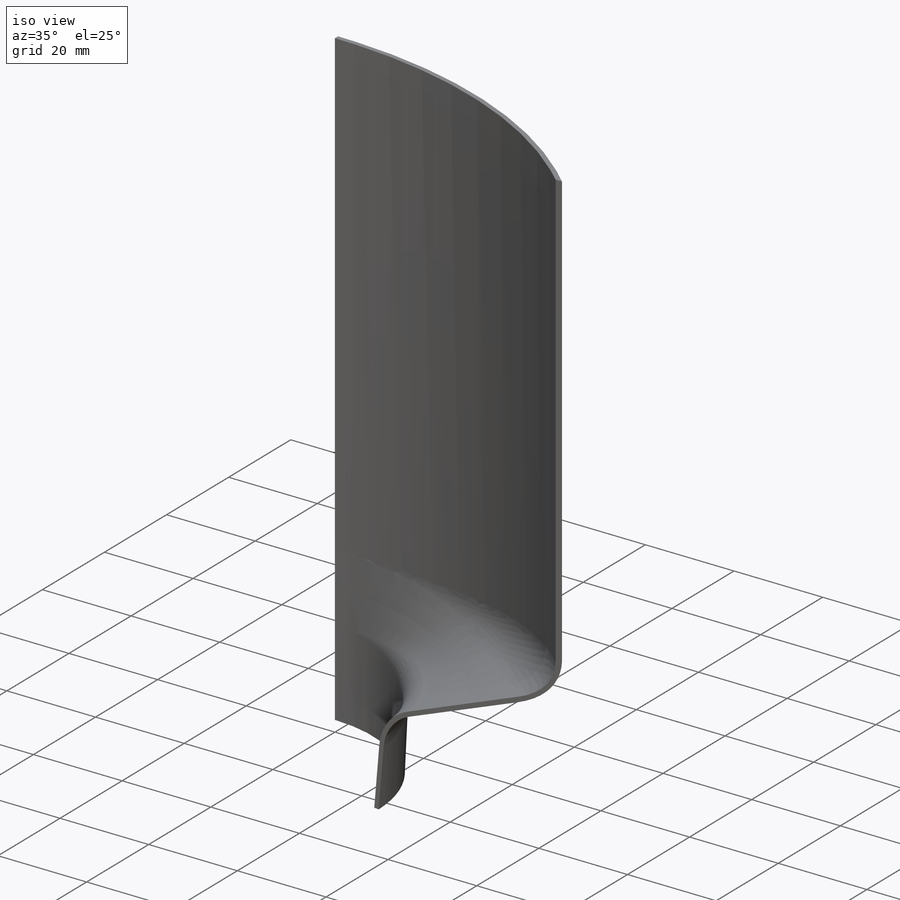
[diagram: iso view]
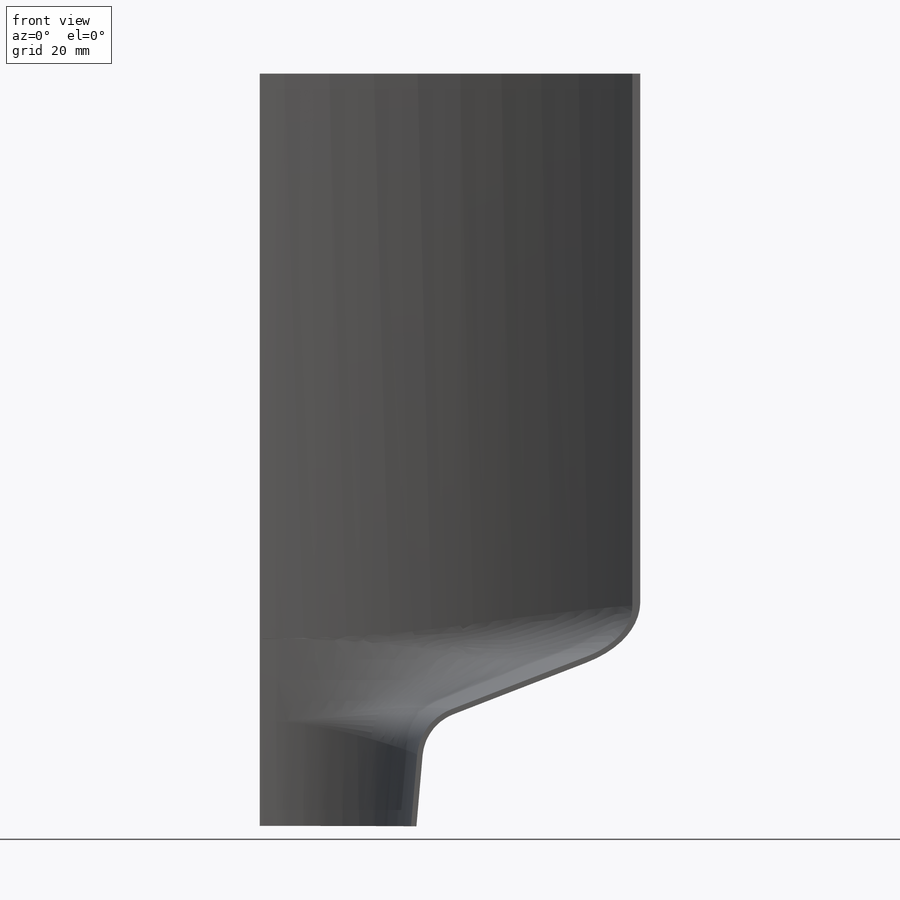
[diagram: front view]
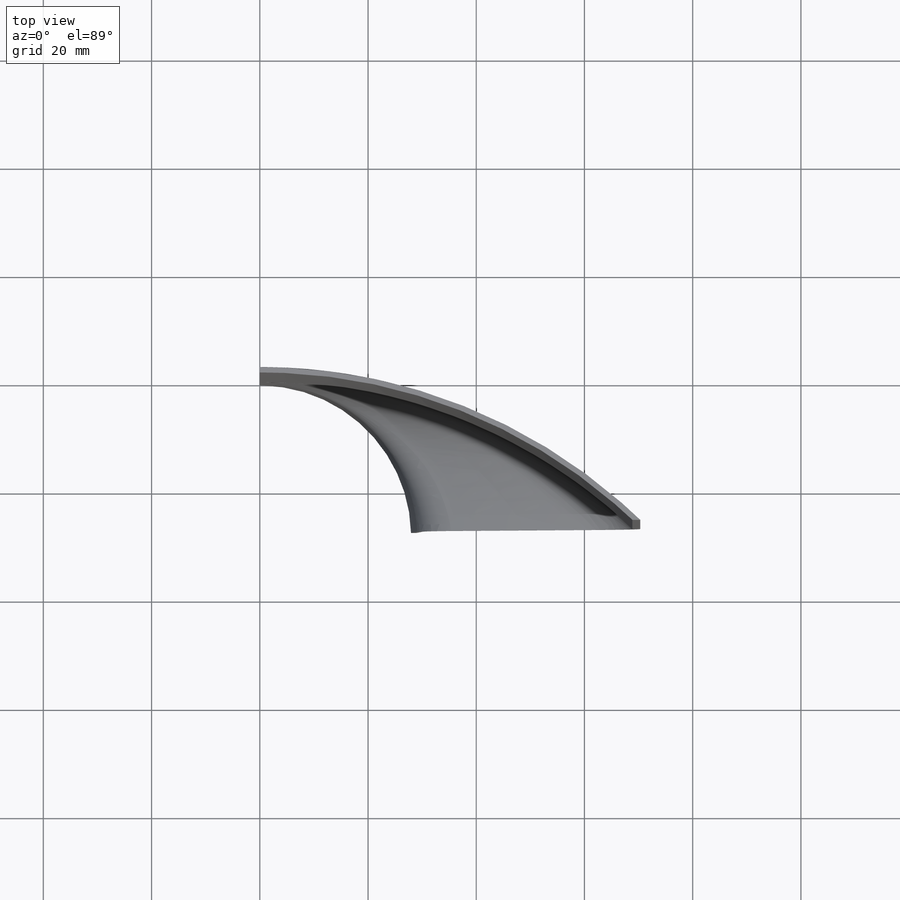
[diagram: top view]
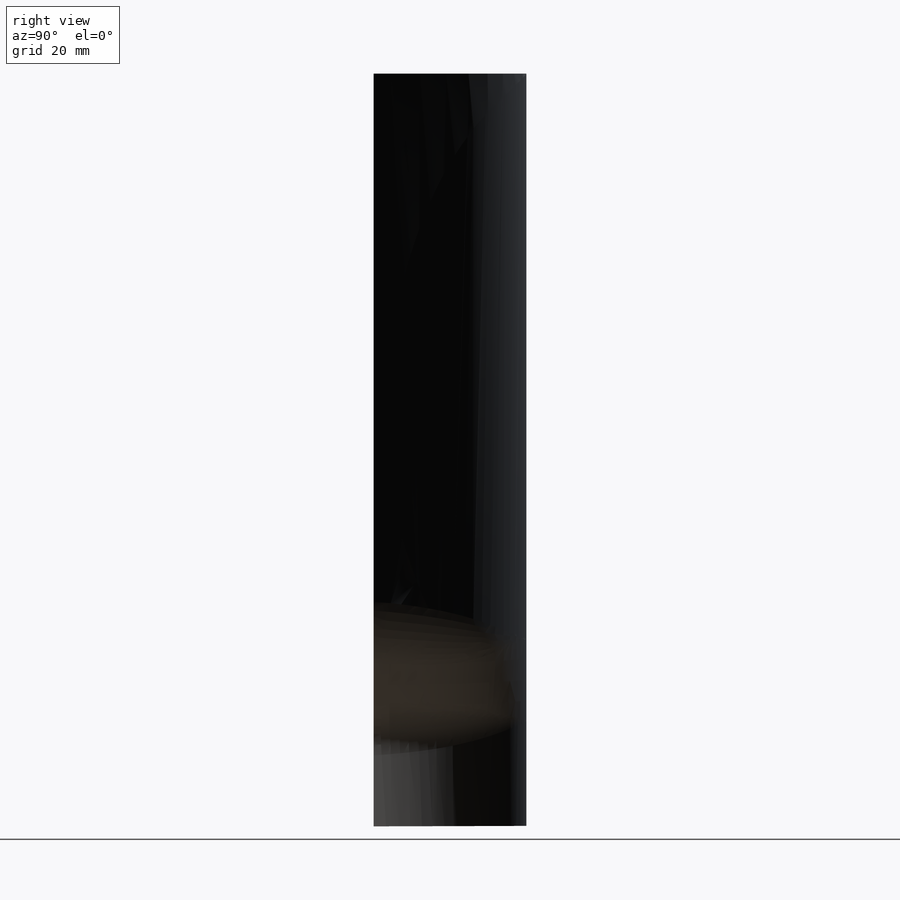
[diagram: right view]
SOLIDWORKS PART (.sldprt)
format: sldprt  version: not decoded by parser v0  size: 611,840 bytes
history: native  units: mm
features: sketch x16, plane x7, fillet x4, surface_op x3, cut_extrude x2, material x1 (+12 scaffold rows collapsed)
feature tree (45):
  scaffold x12  (default folders/planes/origin — collapsed)
  material  "Material <not specified>"
  sketch  "Sketch1"  dims[c1.D5=116.0mm c1.D4=52.0mm c1.D6=67.0mm c1.D8=52.0mm c1.D12=54.0mm c1.D13=41.0mm c1.D14=139.0mm c1.D18=4.0mm c1.D19=4.0mm c2.D18=4.0mm c2.D20=294.0mm c2.D21=10.0mm c2.D1=38.18mm c2.D2=66.27mm c2.D3=74.0mm c2.D4=64.0mm c2.D7=64.0mm c2.D8=139.0mm c2.D9=56.36mm c2.D10=46.97mm c2.D11=30.5mm c2.D14=~47.985195mm c2.D15=~88.158415mm c3.D15=98.0deg c3.D16=25.61mm c3.D17=18.37mm c3.D19=18.37mm c3.D18=~11.020005mm c4.D19=1.5mm c4.D21=~18.191224mm]
  plane  "Plane1"
  sketch  "Sketch2"  dims[D1=27.96mm D2=~5.338895mm]
  plane  "Plane2"  Offset=19.3mm
  sketch  "Sketch3"  dims[D1=~36.765417mm]
  plane  "Plane3"
  sketch  "Sketch4"  dims[D1=~38.648348mm]
  plane  "Plane4"
  sketch  "Sketch5"
  plane  "Plane5"
  sketch  "Sketch6"  dims[D1=100.0mm]
  sketch  "3DSketch3"
  plane  "Plane6"
  sketch  "Sketch7"
  sketch  "3DSketch4"
  sketch  "3DSketch5"
  sketch  "3DSketch6"
  sketch  "Sketch8"
  surface_op  "Surface-Extrude1"
  fillet  "Fillet1"  Radius=10mm
  fillet  "Fillet2"  Radius=10mm
  sketch  "3DSketch7"
  surface_op  "Surface-Knit3"
  sketch  "3DSketch8"
  plane  "Plane8"
  sketch  "Sketch16"
  cut_extrude  "Cut-Extrude4"  Depth=20mm
  fillet  "Fillet9"  Radius=10mm
  fillet  "Fillet10"  Radius=12mm
  sketch  "Sketch17"
  cut_extrude  "Cut-Extrude5"  Depth=0.5mm
  surface_op  "Surface-Knit14"
decode coverage: 11 of 25 modeling features carry decoded parameters
note: ~ marks probable driven/reference dimensions
note: suppression state not decoded; provenance and decode notes live in map.json
